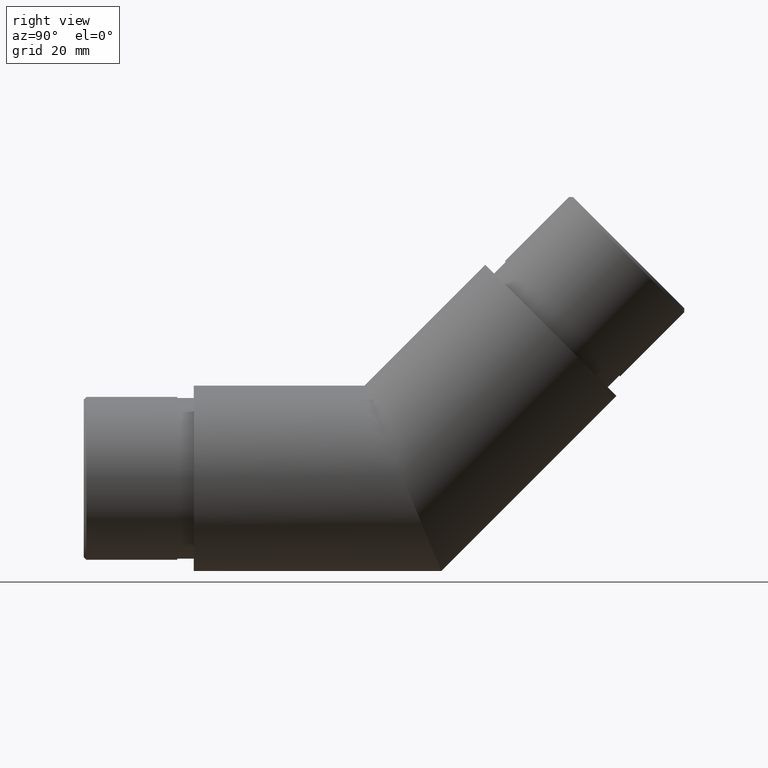
[diagram: clean part render]
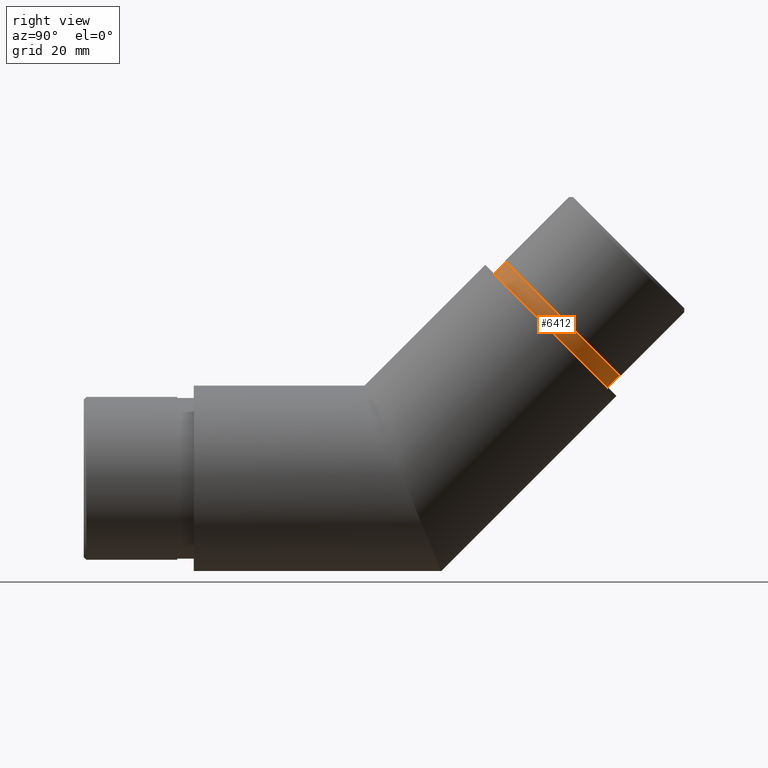
[diagram: same view with one face highlighted and labeled with its STEP entity id]
A machine part, right view. The second image highlights one B-rep face of the part: STEP entity #6412.
In plain terms, the highlighted cylindrical surface (bore or boss wall) has radius 14.6 mm, axis along (-0, -0.7071, -0.7071).
Its self-contained STEP definition (entity closure, byte-faithful):
#1014 = ORIENTED_EDGE ( 'NONE', *, *, #9376, .T. ) ;
#1085 = AXIS2_PLACEMENT_3D ( 'NONE', #7175, #6151, #8873 ) ;
#1289 = AXIS2_PLACEMENT_3D ( 'NONE', #10437, #8691, #11325 ) ;
#1319 = FACE_OUTER_BOUND ( 'NONE', #9812, .T. ) ;
#1969 = CIRCLE ( 'NONE', #1085, 14.59999999999999800 ) ;
#2284 = FACE_OUTER_BOUND ( 'NONE', #4693, .T. ) ;
#3670 = CARTESIAN_POINT ( 'NONE',  ( 0.0000000000000000000, 67.02637623396087500, 29.00587475994768000 ) ) ;
#3709 = DIRECTION ( 'NONE',  ( -0.0000000000000000000, -0.7071067811865459100, -0.7071067811865492400 ) ) ;
#4346 = CARTESIAN_POINT ( 'NONE',  ( 0.0000000000000000000, 54.58129688507762000, 37.20831342171159400 ) ) ;
#4693 = EDGE_LOOP ( 'NONE', ( #1014 ) ) ;
#5722 = CYLINDRICAL_SURFACE ( 'NONE', #1289, 14.60000000000000000 ) ;
#6151 = DIRECTION ( 'NONE',  ( 0.0000000000000000000, 0.7071067811865462400, 0.7071067811865487900 ) ) ;
#6249 = AXIS2_PLACEMENT_3D ( 'NONE', #3670, #3709, #7942 ) ;
#6412 = ADVANCED_FACE ( 'NONE', ( #1319, #2284 ), #5722, .T. ) ;
#7175 = CARTESIAN_POINT ( 'NONE',  ( 0.0000000000000000000, 64.90505589040122900, 26.88455441638802400 ) ) ;
#7312 = EDGE_CURVE ( 'NONE', #7407, #7407, #11387, .T. ) ;
#7407 = VERTEX_POINT ( 'NONE', #10509 ) ;
#7942 = DIRECTION ( 'NONE',  ( 0.0000000000000000000, -0.7071067811865490200, 0.7071067811865460200 ) ) ;
#8691 = DIRECTION ( 'NONE',  ( -0.0000000000000000000, -0.7071067811865459100, -0.7071067811865492400 ) ) ;
#8873 = DIRECTION ( 'NONE',  ( 0.0000000000000000000, -0.7071067811865487900, 0.7071067811865462400 ) ) ;
#9311 = ORIENTED_EDGE ( 'NONE', *, *, #7312, .T. ) ;
#9355 = VERTEX_POINT ( 'NONE', #4346 ) ;
#9376 = EDGE_CURVE ( 'NONE', #9355, #9355, #1969, .T. ) ;
#9812 = EDGE_LOOP ( 'NONE', ( #9311 ) ) ;
#10437 = CARTESIAN_POINT ( 'NONE',  ( 0.0000000000000000000, 67.02637623396087500, 29.00587475994768000 ) ) ;
#10509 = CARTESIAN_POINT ( 'NONE',  ( 0.0000000000000000000, 56.70261722863725900, 39.32963376527125400 ) ) ;
#11325 = DIRECTION ( 'NONE',  ( 0.0000000000000000000, 0.7071067811865492400, -0.7071067811865459100 ) ) ;
#11387 = CIRCLE ( 'NONE', #6249, 14.60000000000000300 ) ;